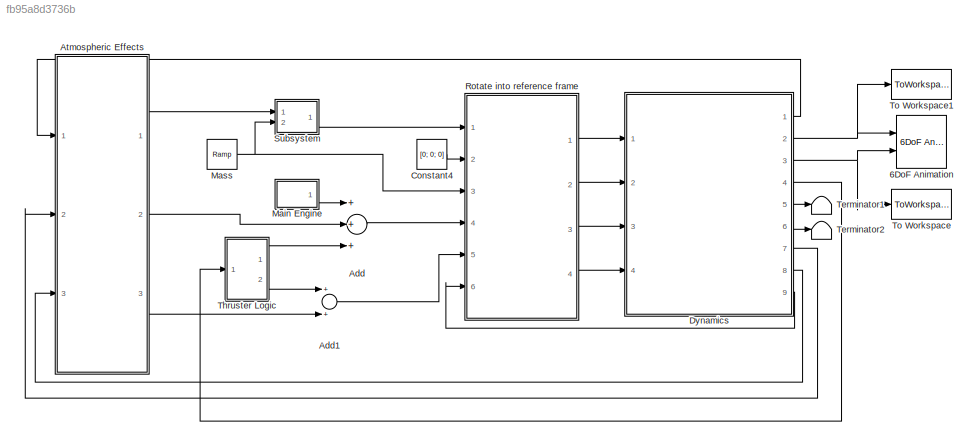
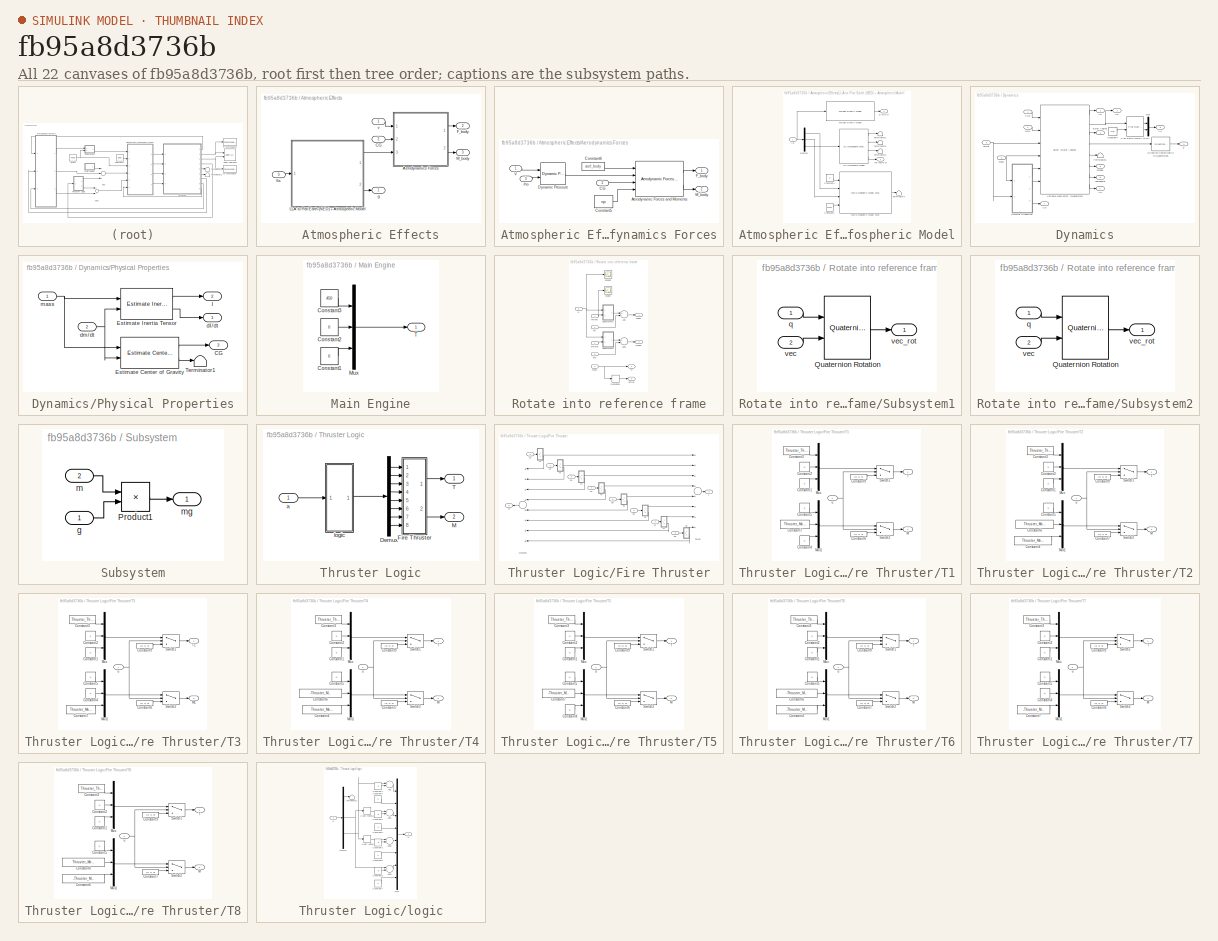
[diagram: thumbnail index - all 22 canvases of the model, root first then tree order]
MODEL slx_fb95a8d3736b
KIND model
BLOCK [Reference] 6DoF Animation  REF=aerolibanim/6DoF Animation
  Ports = [2]
  SourceBlock = aerolibanim/6DoF Animation
  SourceType = 6DoF_Animation
  u1 = [0 400 -200 200 -500 -300]
  u2 = 0.1
  u3 = 40
  u4 = [0 0 40]
  u5 = Fixed position
  u6 = [200 50 -315]
  u7 = 10
  u8 = on
BLOCK [Sum] Add
  InputSameDT = off
  Inputs = +++
  OutDataTypeStr = Inherit: Inherit via internal rule
  Ports = [3, 1]
  SaturateOnIntegerOverflow = off
BLOCK [Sum] Add1
  InputSameDT = off
  OutDataTypeStr = Inherit: Inherit via internal rule
  Ports = [2, 1]
  SaturateOnIntegerOverflow = off
BLOCK [SubSystem] Atmospheric Effects
  FunctionWithSeparateData = off
  MaskHideContents = off
  MinAlgLoopOccurrences = off
  Opaque = off
  Ports = [3, 3]
  PropExecContextOutsideSubsystem = off
  RTWSystemCode = Auto
  RequestExecContextInheritance = off
BLOCK [SubSystem] Atmospheric Effects/Aerodynamics Forces
  FunctionWithSeparateData = off
  MaskHideContents = off
  MinAlgLoopOccurrences = off
  Opaque = off
  Ports = [3, 2]
  PropExecContextOutsideSubsystem = off
  RTWSystemCode = Auto
  RequestExecContextInheritance = off
BLOCK [Reference] Atmospheric Effects/Aerodynamics Forces/Aerodynamic Forces and Moments   REF=aerolibadyn/Aerodynamic
Forces and Moments 
  Ports = [4, 2]
  S = 1
  SourceBlock = aerolibadyn/Aerodynamic\nForces and Moments
  SourceType = Aerodynamic Forces and Moments
  b = 1
  cbar = 1
  inputAxes = Body
  outputForceAxes = Body
  outputMomentAxes = Body
BLOCK [Inport] Atmospheric Effects/Aerodynamics Forces/CG
  IconDisplay = Port number
  Port = 2
BLOCK [Constant] Atmospheric Effects/Aerodynamics Forces/Constant5
  Value = cp
BLOCK [Constant] Atmospheric Effects/Aerodynamics Forces/Constant6
  Value = coef_body
BLOCK [Reference] Atmospheric Effects/Aerodynamics Forces/Dynamic Pressure  REF=aerolibasang/Dynamic Pressure
  Ports = [2, 1]
  SourceBlock = aerolibasang/Dynamic Pressure
  SourceType = Dynamic Pressure
BLOCK [Outport] Atmospheric Effects/Aerodynamics Forces/F_body
  IconDisplay = Port number
BLOCK [Outport] Atmospheric Effects/Aerodynamics Forces/M_body
  IconDisplay = Port number
  Port = 2
BLOCK [Inport] Atmospheric Effects/Aerodynamics Forces/V
  IconDisplay = Port number
BLOCK [Inport] Atmospheric Effects/Aerodynamics Forces/rho
  IconDisplay = Port number
  Port = 3
BLOCK [Inport] Atmospheric Effects/CG
  IconDisplay = Port number
  Port = 2
BLOCK [Outport] Atmospheric Effects/F_body
  IconDisplay = Port number
  Port = 2
BLOCK [SubSystem] Atmospheric Effects/LLA to Flat Earth (NED) + Atmospheric Model
  FunctionWithSeparateData = off
  MaskHideContents = off
  MinAlgLoopOccurrences = off
  Opaque = off
  Ports = [1, 2]
  PropExecContextOutsideSubsystem = off
  RTWSystemCode = Auto
  RequestExecContextInheritance = off
BLOCK [Constant] Atmospheric Effects/LLA to Flat Earth (NED) + Atmospheric Model/Constant1
  Value = dyear
BLOCK [Constant] Atmospheric Effects/LLA to Flat Earth (NED) + Atmospheric Model/Constant4
  Value = 0
BLOCK [Demux] Atmospheric Effects/LLA to Flat Earth (NED) + Atmospheric Model/Demux1
  DisplayOption = bar
  Outputs = 3
  Ports = [1, 3]
BLOCK [Reference] Atmospheric Effects/LLA to Flat Earth (NED) + Atmospheric Model/ISA Atmosphere Model  REF=aerolibatmos2/ISA Atmosphere Model
  L = 0.0065
  P0 = 101325
  Ports = [1, 4]
  R = 287.0531
  SourceBlock = aerolibatmos2/ISA Atmosphere Model
  SourceType = International Standard Atmosphere Model
  T0 = 288.15
  custom = off
  g = 9.80665
  gamma = 1.4
  h_strat = 20000
  h_trop = 11000
  rho0 = 1.225
BLOCK [Terminator] Atmospheric Effects/LLA to Flat Earth (NED) + Atmospheric Model/Terminator1
BLOCK [Terminator] Atmospheric Effects/LLA to Flat Earth (NED) + Atmospheric Model/Terminator2
BLOCK [Terminator] Atmospheric Effects/LLA to Flat Earth (NED) + Atmospheric Model/Terminator3
BLOCK [Terminator] Atmospheric Effects/LLA to Flat Earth (NED) + Atmospheric Model/Terminator4
BLOCK [Reference] Atmospheric Effects/LLA to Flat Earth (NED) + Atmospheric Model/WGS84 Gravity Model   REF=aerolibgravity2/WGS84 Gravity Model 
  Ports = [1, 1]
  SourceBlock = aerolibgravity2/WGS84 Gravity Model
  SourceType = WGS84 Gravity Model 3D
  action = Warning
  day = 10
  jd_loc = off
  model = WGS84 Taylor Series
  month = October
  no_atmos = on
  no_centrifugal = on
  precessing = on
  units = Metric (MKS)
  year = 2004
BLOCK [Reference] Atmospheric Effects/LLA to Flat Earth (NED) + Atmospheric Model/World Magnetic Model 2010  REF=aerolibgravity2/World Magnetic Model 2010
  Ports = [4, 1]
  SourceBlock = aerolibgravity2/World Magnetic Model 2010
  SourceType = World Magnetic Model 2010
  action = Error
  day = 12
  dec_out = off
  h_out = off
  inc_out = off
  month = June
  ti_out = off
  time_in = on
  units = Metric (MKS)
  year = 2014
BLOCK [Outport] Atmospheric Effects/LLA to Flat Earth (NED) + Atmospheric Model/g (m//s^2) 
  IconDisplay = Port number
  Port = 2
BLOCK [Inport] Atmospheric Effects/LLA to Flat Earth (NED) + Atmospheric Model/lla
  IconDisplay = Port number
BLOCK [Outport] Atmospheric Effects/LLA to Flat Earth (NED) + Atmospheric Model/rho (kg//m^3)
  IconDisplay = Port number
BLOCK [Outport] Atmospheric Effects/M_body
  IconDisplay = Port number
  Port = 3
BLOCK [Outport] Atmospheric Effects/g
  IconDisplay = Port number
BLOCK [Inport] Atmospheric Effects/lla
  IconDisplay = Port number
  Port = 3
BLOCK [Inport] Atmospheric Effects/v
  IconDisplay = Port number
BLOCK [Constant] Constant4
  Value = [0; 0; 0]
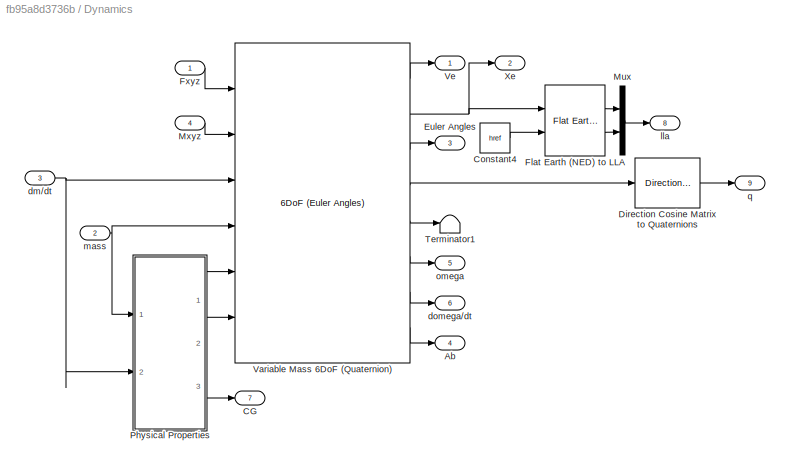
BLOCK [SubSystem] Dynamics
  FunctionWithSeparateData = off
  MaskHideContents = off
  MinAlgLoopOccurrences = off
  Opaque = off
  Ports = [4, 9]
  PropExecContextOutsideSubsystem = off
  RTWSystemCode = Auto
  RequestExecContextInheritance = off
BLOCK [Outport] Dynamics/Ab
  IconDisplay = Port number
  Port = 4
BLOCK [Outport] Dynamics/CG
  IconDisplay = Port number
  Port = 7
BLOCK [Constant] Dynamics/Constant4
  Value = href
BLOCK [Reference] Dynamics/Direction Cosine Matrix  to Quaternions  REF=aerolibtransform2/Direction Cosine Matrix 
to Quaternions
  Ports = [1, 1]
  SourceBlock = aerolibtransform2/Direction Cosine Matrix \nto Quaternions
  SourceType = DCM2Quaternion
BLOCK [Outport] Dynamics/Euler Angles
  IconDisplay = Port number
  Port = 3
BLOCK [Reference] Dynamics/Flat Earth (NED) to LLA  REF=aerolibtransform2/Flat Earth to LLA
  F = 1/298.257223563
  LL0 = [lat lon]
  Ports = [2, 2]
  R = 6378137
  SourceBlock = aerolibtransform2/Flat Earth to LLA
  SourceType = Flat Earth to LLA
  psi = 0
  ptype = Earth (WGS84)
  units = Metric (MKS)
BLOCK [Inport] Dynamics/Fxyz
  IconDisplay = Port number
BLOCK [Mux] Dynamics/Mux
  DisplayOption = bar
  Inputs = 2
  Ports = [2, 1]
BLOCK [Inport] Dynamics/Mxyz
  IconDisplay = Port number
  Port = 4
BLOCK [SubSystem] Dynamics/Physical Properties
  FunctionWithSeparateData = off
  MaskHideContents = off
  MinAlgLoopOccurrences = off
  Opaque = off
  Ports = [2, 3]
  PropExecContextOutsideSubsystem = off
  RTWSystemCode = Auto
  RequestExecContextInheritance = off
BLOCK [Outport] Dynamics/Physical Properties/CG
  IconDisplay = Port number
  Port = 3
BLOCK [Reference] Dynamics/Physical Properties/Estimate Center of Gravity  REF=aerolibbdyn/Estimate
Center of Gravity
  Ports = [2, 2]
  SourceBlock = aerolibbdyn/Estimate\nCenter of Gravity
  SourceType = Estimate Center of Gravity
  ecg = empty_cg
  emass = empty_mass
  fcg = full_cg
  fmass = full_mass
BLOCK [Reference] Dynamics/Physical Properties/Estimate Inertia Tensor  REF=aerolibbdyn/Estimate
Inertia Tensor
  Ports = [2, 2]
  SourceBlock = aerolibbdyn/Estimate\nInertia Tensor
  SourceType = Estimate Inertia Tensor
  eI = empty_intertia_matrix
  emass = empty_mass
  fI = full_intertia_matrix
  fmass = full_mass
BLOCK [Outport] Dynamics/Physical Properties/I
  IconDisplay = Port number
  Port = 2
BLOCK [Terminator] Dynamics/Physical Properties/Terminator1
BLOCK [Outport] Dynamics/Physical Properties/dI//dt
  IconDisplay = Port number
BLOCK [Inport] Dynamics/Physical Properties/dm//dt
  IconDisplay = Port number
  Port = 2
BLOCK [Inport] Dynamics/Physical Properties/mass
  IconDisplay = Port number
BLOCK [Terminator] Dynamics/Terminator1
BLOCK [Reference] Dynamics/Variable Mass 6DoF (Quaternion)  REF=aerolib6dof2/6DoF (Euler Angles)
  Ports = [6, 8]
  SourceBlock = aerolib6dof2/6DoF (Euler Angles)
  SourceType = 6DoF EoM (Body Axis)
  Vm_0 = [0 0 0]
  eul_0 = [phi0 theta0 psi0]
  inertia = eye(3)
  inertia_e = eye(3)
  inertia_f = eye(3)
  k_quat = 1.0
  mass_0 = 1.0
  mass_e = 0
  mass_f = 0
  mtype = Custom Variable
  pm_0 = [0 0 0]
  rep = Quaternion
  units = Metric (MKS)
  xme_0 = [0 0 0]
BLOCK [Outport] Dynamics/Ve
  IconDisplay = Port number
BLOCK [Outport] Dynamics/Xe
  IconDisplay = Port number
  Port = 2
BLOCK [Inport] Dynamics/dm//dt
  IconDisplay = Port number
  Port = 3
BLOCK [Outport] Dynamics/domega//dt
  IconDisplay = Port number
  Port = 6
BLOCK [Outport] Dynamics/lla
  IconDisplay = Port number
  Port = 8
BLOCK [Inport] Dynamics/mass
  IconDisplay = Port number
  Port = 2
BLOCK [Outport] Dynamics/omega
  IconDisplay = Port number
  Port = 5
BLOCK [Outport] Dynamics/q
  IconDisplay = Port number
  Port = 9
BLOCK [SubSystem] Main Engine
  FunctionWithSeparateData = off
  MaskHideContents = off
  MinAlgLoopOccurrences = off
  Opaque = off
  Ports = [0, 1]
  PropExecContextOutsideSubsystem = off
  RTWSystemCode = Auto
  RequestExecContextInheritance = off
BLOCK [Constant] Main Engine/Constant1
  Value = 0
BLOCK [Constant] Main Engine/Constant2
  Value = 0
BLOCK [Constant] Main Engine/Constant3
  Value = 450
BLOCK [Mux] Main Engine/Mux
  DisplayOption = bar
  Inputs = 3
  Ports = [3, 1]
BLOCK [Outport] Main Engine/T
  IconDisplay = Port number
BLOCK [Reference] Mass  REF=simulink/Sources/Ramp
  Ports = [0, 1]
  SourceBlock = simulink/Sources/Ramp
  SourceType = Ramp
  VectorParams1D = on
  X0 = 50
  slope = -.2
  start = 0
BLOCK [SubSystem] Rotate into reference frame
  FunctionWithSeparateData = off
  MaskHideContents = off
  MinAlgLoopOccurrences = off
  Opaque = off
  Ports = [6, 4]
  PropExecContextOutsideSubsystem = off
  RTWSystemCode = Auto
  RequestExecContextInheritance = off
BLOCK [Sum] Rotate into reference frame/Add
  InputSameDT = off
  OutDataTypeStr = Inherit: Inherit via internal rule
  Ports = [2, 1]
  SaturateOnIntegerOverflow = off
BLOCK [Sum] Rotate into reference frame/Add1
  InputSameDT = off
  OutDataTypeStr = Inherit: Inherit via internal rule
  Ports = [2, 1]
  SaturateOnIntegerOverflow = off
BLOCK [Derivative] Rotate into reference frame/Derivative
BLOCK [Inport] Rotate into reference frame/Fb
  IconDisplay = Port number
  Port = 4
BLOCK [Outport] Rotate into reference frame/Fbody
  IconDisplay = Port number
BLOCK [Inport] Rotate into reference frame/Fworld
  IconDisplay = Port number
BLOCK [Inport] Rotate into reference frame/Mb
  IconDisplay = Port number
  Port = 5
BLOCK [Outport] Rotate into reference frame/Mbody
  IconDisplay = Port number
  Port = 4
BLOCK [Inport] Rotate into reference frame/Mworld
  IconDisplay = Port number
  Port = 2
BLOCK [Scope] Rotate into reference frame/Scope
  DataFormat = StructureWithTime
  Floating = off
  NumInputPorts = 1
  Ports = [1]
  SampleTime = 0
  ShowLegends = off
BLOCK [Scope] Rotate into reference frame/Scope2
  DataFormat = StructureWithTime
  Floating = off
  NumInputPorts = 1
  Ports = [1]
  SampleTime = 0
  SaveName = ScopeData2
  ShowLegends = off
BLOCK [SubSystem] Rotate into reference frame/Subsystem1
  FunctionWithSeparateData = off
  MaskHideContents = off
  MinAlgLoopOccurrences = off
  Opaque = off
  Ports = [2, 1]
  PropExecContextOutsideSubsystem = off
  RTWSystemCode = Auto
  RequestExecContextInheritance = off
BLOCK [Reference] Rotate into reference frame/Subsystem1/Quaternion Rotation  REF=aerolibutil/Quaternion
Rotation
  Ports = [2, 1]
  SourceBlock = aerolibutil/Quaternion\nRotation
  SourceType = Quaternion Rotation
BLOCK [Inport] Rotate into reference frame/Subsystem1/q
  IconDisplay = Port number
BLOCK [Inport] Rotate into reference frame/Subsystem1/vec
  IconDisplay = Port number
  Port = 2
BLOCK [Outport] Rotate into reference frame/Subsystem1/vec_rot
  IconDisplay = Port number
BLOCK [SubSystem] Rotate into reference frame/Subsystem2
  FunctionWithSeparateData = off
  MaskHideContents = off
  MinAlgLoopOccurrences = off
  Opaque = off
  Ports = [2, 1]
  PropExecContextOutsideSubsystem = off
  RTWSystemCode = Auto
  RequestExecContextInheritance = off
BLOCK [Reference] Rotate into reference frame/Subsystem2/Quaternion Rotation  REF=aerolibutil/Quaternion
Rotation
  Ports = [2, 1]
  SourceBlock = aerolibutil/Quaternion\nRotation
  SourceType = Quaternion Rotation
BLOCK [Inport] Rotate into reference frame/Subsystem2/q
  IconDisplay = Port number
BLOCK [Inport] Rotate into reference frame/Subsystem2/vec
  IconDisplay = Port number
  Port = 2
BLOCK [Outport] Rotate into reference frame/Subsystem2/vec_rot
  IconDisplay = Port number
BLOCK [Outport] Rotate into reference frame/dm//dt
  IconDisplay = Port number
  Port = 3
BLOCK [Outport] Rotate into reference frame/m
  IconDisplay = Port number
  Port = 2
BLOCK [Inport] Rotate into reference frame/mass
  IconDisplay = Port number
  Port = 3
BLOCK [Inport] Rotate into reference frame/q
  IconDisplay = Port number
  Port = 6
BLOCK [SubSystem] Subsystem
  FunctionWithSeparateData = off
  MaskHideContents = off
  MinAlgLoopOccurrences = off
  Opaque = off
  Ports = [2, 1]
  PropExecContextOutsideSubsystem = off
  RTWSystemCode = Auto
  RequestExecContextInheritance = off
BLOCK [Product] Subsystem/Product1
  InputSameDT = off
  OutDataTypeStr = Inherit: Inherit via internal rule
  Ports = [2, 1]
  SaturateOnIntegerOverflow = off
BLOCK [Inport] Subsystem/g
  IconDisplay = Port number
BLOCK [Inport] Subsystem/m
  IconDisplay = Port number
  Port = 2
BLOCK [Outport] Subsystem/mg
  IconDisplay = Port number
BLOCK [Terminator] Terminator1
BLOCK [Terminator] Terminator2
BLOCK [SubSystem] Thruster Logic
  FunctionWithSeparateData = off
  MaskHideContents = off
  MinAlgLoopOccurrences = off
  Opaque = off
  Ports = [1, 2]
  PropExecContextOutsideSubsystem = off
  RTWSystemCode = Auto
  RequestExecContextInheritance = off
BLOCK [Demux] Thruster Logic/Demux
  DisplayOption = bar
  Outputs = 8
  Ports = [1, 8]
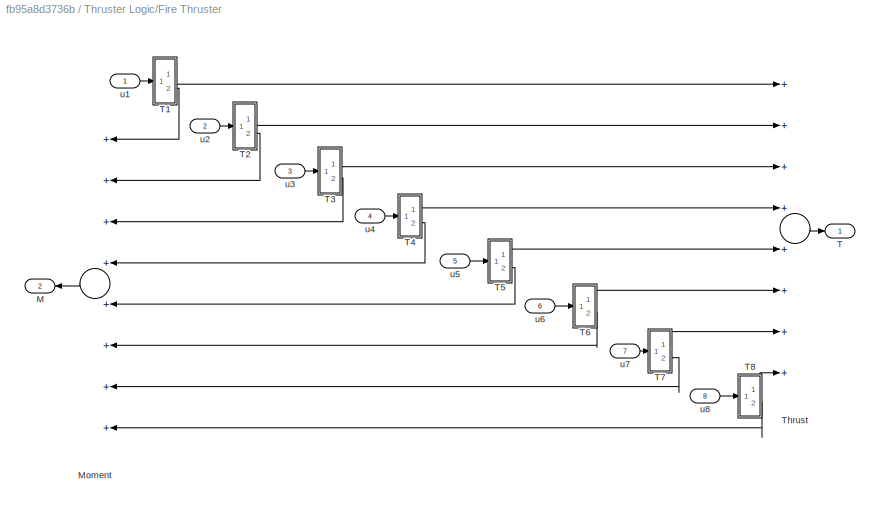
BLOCK [SubSystem] Thruster Logic/Fire Thruster
  FunctionWithSeparateData = off
  MaskHideContents = off
  MinAlgLoopOccurrences = off
  Opaque = off
  Ports = [8, 2]
  PropExecContextOutsideSubsystem = off
  RTWSystemCode = Auto
  RequestExecContextInheritance = off
BLOCK [Outport] Thruster Logic/Fire Thruster/M
  IconDisplay = Port number
  Port = 2
BLOCK [Sum] Thruster Logic/Fire Thruster/Moment
  InputSameDT = off
  Inputs = ++++++++
  OutDataTypeStr = Inherit: Inherit via internal rule
  Ports = [8, 1]
  SaturateOnIntegerOverflow = off
BLOCK [Outport] Thruster Logic/Fire Thruster/T
  IconDisplay = Port number
BLOCK [SubSystem] Thruster Logic/Fire Thruster/T1
  FunctionWithSeparateData = off
  MaskHideContents = off
  MinAlgLoopOccurrences = off
  Opaque = off
  Ports = [1, 2]
  PropExecContextOutsideSubsystem = off
  RTWSystemCode = Auto
  RequestExecContextInheritance = off
BLOCK [Constant] Thruster Logic/Fire Thruster/T1/Constant1
  Value = 0
BLOCK [Constant] Thruster Logic/Fire Thruster/T1/Constant2
  Value = 0
BLOCK [Constant] Thruster Logic/Fire Thruster/T1/Constant3
  Value = Thruster_Thrust
BLOCK [Constant] Thruster Logic/Fire Thruster/T1/Constant4
  Value = 0
BLOCK [Constant] Thruster Logic/Fire Thruster/T1/Constant5
  Value = 0
BLOCK [Constant] Thruster Logic/Fire Thruster/T1/Constant6
  Value = [0; 0; 0]
BLOCK [Constant] Thruster Logic/Fire Thruster/T1/Constant7
  Value = Thruster_Moment
BLOCK [Constant] Thruster Logic/Fire Thruster/T1/Constant9
  Value = [0; 0; 0]
BLOCK [Outport] Thruster Logic/Fire Thruster/T1/M
  IconDisplay = Port number
  Port = 2
BLOCK [Mux] Thruster Logic/Fire Thruster/T1/Mux
  DisplayOption = bar
  Inputs = 3
  Ports = [3, 1]
BLOCK [Mux] Thruster Logic/Fire Thruster/T1/Mux1
  DisplayOption = bar
  Inputs = 3
  Ports = [3, 1]
BLOCK [Switch] Thruster Logic/Fire Thruster/T1/Switch1
  InputSameDT = off
  SaturateOnIntegerOverflow = off
  Threshold = threshold
BLOCK [Switch] Thruster Logic/Fire Thruster/T1/Switch2
  InputSameDT = off
  SaturateOnIntegerOverflow = off
  Threshold = threshold
BLOCK [Outport] Thruster Logic/Fire Thruster/T1/T
  IconDisplay = Port number
BLOCK [Inport] Thruster Logic/Fire Thruster/T1/u
  IconDisplay = Port number
BLOCK [SubSystem] Thruster Logic/Fire Thruster/T2
  FunctionWithSeparateData = off
  MaskHideContents = off
  MinAlgLoopOccurrences = off
  Opaque = off
  Ports = [1, 2]
  PropExecContextOutsideSubsystem = off
  RTWSystemCode = Auto
  RequestExecContextInheritance = off
BLOCK [Constant] Thruster Logic/Fire Thruster/T2/Constant1
  Value = 0
BLOCK [Constant] Thruster Logic/Fire Thruster/T2/Constant2
  Value = 0
BLOCK [Constant] Thruster Logic/Fire Thruster/T2/Constant3
  Value = Thruster_Thrust
BLOCK [Constant] Thruster Logic/Fire Thruster/T2/Constant4
  Value = Thruster_Moment/sqrt(2)
BLOCK [Constant] Thruster Logic/Fire Thruster/T2/Constant5
  Value = 0
BLOCK [Constant] Thruster Logic/Fire Thruster/T2/Constant6
  Value = Thruster_Moment/sqrt(2)
BLOCK [Constant] Thruster Logic/Fire Thruster/T2/Constant7
  Value = [0; 0; 0]
BLOCK [Constant] Thruster Logic/Fire Thruster/T2/Constant9
  Value = [0; 0; 0]
BLOCK [Outport] Thruster Logic/Fire Thruster/T2/M
  IconDisplay = Port number
  Port = 2
BLOCK [Mux] Thruster Logic/Fire Thruster/T2/Mux
  DisplayOption = bar
  Inputs = 3
  Ports = [3, 1]
BLOCK [Mux] Thruster Logic/Fire Thruster/T2/Mux1
  DisplayOption = bar
  Inputs = 3
  Ports = [3, 1]
BLOCK [Switch] Thruster Logic/Fire Thruster/T2/Switch1
  InputSameDT = off
  SaturateOnIntegerOverflow = off
  Threshold = threshold
BLOCK [Switch] Thruster Logic/Fire Thruster/T2/Switch2
  InputSameDT = off
  SaturateOnIntegerOverflow = off
  Threshold = threshold
BLOCK [Outport] Thruster Logic/Fire Thruster/T2/T
  IconDisplay = Port number
BLOCK [Inport] Thruster Logic/Fire Thruster/T2/u
  IconDisplay = Port number
BLOCK [SubSystem] Thruster Logic/Fire Thruster/T3
  FunctionWithSeparateData = off
  MaskHideContents = off
  MinAlgLoopOccurrences = off
  Opaque = off
  Ports = [1, 2]
  PropExecContextOutsideSubsystem = off
  RTWSystemCode = Auto
  RequestExecContextInheritance = off
BLOCK [Constant] Thruster Logic/Fire Thruster/T3/Constant1
  Value = 0
BLOCK [Constant] Thruster Logic/Fire Thruster/T3/Constant2
  Value = 0
BLOCK [Constant] Thruster Logic/Fire Thruster/T3/Constant3
  Value = Thruster_Thrust
BLOCK [Constant] Thruster Logic/Fire Thruster/T3/Constant4
  Value = 0
BLOCK [Constant] Thruster Logic/Fire Thruster/T3/Constant5
  Value = 0
BLOCK [Constant] Thruster Logic/Fire Thruster/T3/Constant6
  Value = [0; 0; 0]
BLOCK [Constant] Thruster Logic/Fire Thruster/T3/Constant7
  Value = Thruster_Moment
BLOCK [Constant] Thruster Logic/Fire Thruster/T3/Constant9
  Value = [0; 0; 0]
BLOCK [Outport] Thruster Logic/Fire Thruster/T3/M1
  IconDisplay = Port number
  Port = 2
BLOCK [Mux] Thruster Logic/Fire Thruster/T3/Mux
  DisplayOption = bar
  Inputs = 3
  Ports = [3, 1]
BLOCK [Mux] Thruster Logic/Fire Thruster/T3/Mux1
  DisplayOption = bar
  Inputs = 3
  Ports = [3, 1]
BLOCK [Switch] Thruster Logic/Fire Thruster/T3/Switch1
  InputSameDT = off
  SaturateOnIntegerOverflow = off
  Threshold = threshold
BLOCK [Switch] Thruster Logic/Fire Thruster/T3/Switch2
  InputSameDT = off
  SaturateOnIntegerOverflow = off
  Threshold = threshold
BLOCK [Outport] Thruster Logic/Fire Thruster/T3/T1
  IconDisplay = Port number
BLOCK [Inport] Thruster Logic/Fire Thruster/T3/u
  IconDisplay = Port number
BLOCK [SubSystem] Thruster Logic/Fire Thruster/T4
  FunctionWithSeparateData = off
  MaskHideContents = off
  MinAlgLoopOccurrences = off
  Opaque = off
  Ports = [1, 2]
  PropExecContextOutsideSubsystem = off
  RTWSystemCode = Auto
  RequestExecContextInheritance = off
BLOCK [Constant] Thruster Logic/Fire Thruster/T4/Constant1
  Value = 0
BLOCK [Constant] Thruster Logic/Fire Thruster/T4/Constant2
  Value = 0
BLOCK [Constant] Thruster Logic/Fire Thruster/T4/Constant3
  Value = Thruster_Thrust
BLOCK [Constant] Thruster Logic/Fire Thruster/T4/Constant4
  Value = Thruster_Moment/sqrt(2)
BLOCK [Constant] Thruster Logic/Fire Thruster/T4/Constant5
  Value = 0
BLOCK [Constant] Thruster Logic/Fire Thruster/T4/Constant6
  Value = -Thruster_Moment/sqrt(2)
BLOCK [Constant] Thruster Logic/Fire Thruster/T4/Constant7
  Value = [0; 0; 0]
BLOCK [Constant] Thruster Logic/Fire Thruster/T4/Constant9
  Value = [0; 0; 0]
BLOCK [Outport] Thruster Logic/Fire Thruster/T4/M
  IconDisplay = Port number
  Port = 2
BLOCK [Mux] Thruster Logic/Fire Thruster/T4/Mux
  DisplayOption = bar
  Inputs = 3
  Ports = [3, 1]
BLOCK [Mux] Thruster Logic/Fire Thruster/T4/Mux1
  DisplayOption = bar
  Inputs = 3
  Ports = [3, 1]
BLOCK [Switch] Thruster Logic/Fire Thruster/T4/Switch1
  InputSameDT = off
  SaturateOnIntegerOverflow = off
  Threshold = threshold
BLOCK [Switch] Thruster Logic/Fire Thruster/T4/Switch2
  InputSameDT = off
  SaturateOnIntegerOverflow = off
  Threshold = threshold
BLOCK [Outport] Thruster Logic/Fire Thruster/T4/T
  IconDisplay = Port number
BLOCK [Inport] Thruster Logic/Fire Thruster/T4/u
  IconDisplay = Port number
BLOCK [SubSystem] Thruster Logic/Fire Thruster/T5
  FunctionWithSeparateData = off
  MaskHideContents = off
  MinAlgLoopOccurrences = off
  Opaque = off
  Ports = [1, 2]
  PropExecContextOutsideSubsystem = off
  RTWSystemCode = Auto
  RequestExecContextInheritance = off
BLOCK [Constant] Thruster Logic/Fire Thruster/T5/Constant1
  Value = 0
BLOCK [Constant] Thruster Logic/Fire Thruster/T5/Constant2
  Value = 0
BLOCK [Constant] Thruster Logic/Fire Thruster/T5/Constant3
  Value = Thruster_Thrust
BLOCK [Constant] Thruster Logic/Fire Thruster/T5/Constant4
  Value = 0
BLOCK [Constant] Thruster Logic/Fire Thruster/T5/Constant5
  Value = 0
BLOCK [Constant] Thruster Logic/Fire Thruster/T5/Constant6
  Value = [0; 0; 0]
BLOCK [Constant] Thruster Logic/Fire Thruster/T5/Constant7
  Value = -Thruster_Moment
BLOCK [Constant] Thruster Logic/Fire Thruster/T5/Constant9
  Value = [0; 0; 0]
BLOCK [Outport] Thruster Logic/Fire Thruster/T5/M
  IconDisplay = Port number
  Port = 2
BLOCK [Mux] Thruster Logic/Fire Thruster/T5/Mux
  DisplayOption = bar
  Inputs = 3
  Ports = [3, 1]
BLOCK [Mux] Thruster Logic/Fire Thruster/T5/Mux1
  DisplayOption = bar
  Inputs = 3
  Ports = [3, 1]
BLOCK [Switch] Thruster Logic/Fire Thruster/T5/Switch1
  InputSameDT = off
  SaturateOnIntegerOverflow = off
  Threshold = threshold
BLOCK [Switch] Thruster Logic/Fire Thruster/T5/Switch2
  InputSameDT = off
  SaturateOnIntegerOverflow = off
  Threshold = threshold
BLOCK [Outport] Thruster Logic/Fire Thruster/T5/T
  IconDisplay = Port number
BLOCK [Inport] Thruster Logic/Fire Thruster/T5/u
  IconDisplay = Port number
BLOCK [SubSystem] Thruster Logic/Fire Thruster/T6
  FunctionWithSeparateData = off
  MaskHideContents = off
  MinAlgLoopOccurrences = off
  Opaque = off
  Ports = [1, 2]
  PropExecContextOutsideSubsystem = off
  RTWSystemCode = Auto
  RequestExecContextInheritance = off
BLOCK [Constant] Thruster Logic/Fire Thruster/T6/Constant1
  Value = 0
BLOCK [Constant] Thruster Logic/Fire Thruster/T6/Constant2
  Value = 0
BLOCK [Constant] Thruster Logic/Fire Thruster/T6/Constant3
  Value = Thruster_Thrust
BLOCK [Constant] Thruster Logic/Fire Thruster/T6/Constant4
  Value = -Thruster_Moment/sqrt(2)
BLOCK [Constant] Thruster Logic/Fire Thruster/T6/Constant5
  Value = 0
BLOCK [Constant] Thruster Logic/Fire Thruster/T6/Constant6
  Value = -Thruster_Moment/sqrt(2)
BLOCK [Constant] Thruster Logic/Fire Thruster/T6/Constant7
  Value = [0; 0; 0]
BLOCK [Constant] Thruster Logic/Fire Thruster/T6/Constant9
  Value = [0; 0; 0]
BLOCK [Outport] Thruster Logic/Fire Thruster/T6/M
  IconDisplay = Port number
  Port = 2
BLOCK [Mux] Thruster Logic/Fire Thruster/T6/Mux
  DisplayOption = bar
  Inputs = 3
  Ports = [3, 1]
BLOCK [Mux] Thruster Logic/Fire Thruster/T6/Mux1
  DisplayOption = bar
  Inputs = 3
  Ports = [3, 1]
BLOCK [Switch] Thruster Logic/Fire Thruster/T6/Switch1
  InputSameDT = off
  SaturateOnIntegerOverflow = off
  Threshold = threshold
BLOCK [Switch] Thruster Logic/Fire Thruster/T6/Switch2
  InputSameDT = off
  SaturateOnIntegerOverflow = off
  Threshold = threshold
BLOCK [Outport] Thruster Logic/Fire Thruster/T6/T
  IconDisplay = Port number
BLOCK [Inport] Thruster Logic/Fire Thruster/T6/u
  IconDisplay = Port number
BLOCK [SubSystem] Thruster Logic/Fire Thruster/T7
  FunctionWithSeparateData = off
  MaskHideContents = off
  MinAlgLoopOccurrences = off
  Opaque = off
  Ports = [1, 2]
  PropExecContextOutsideSubsystem = off
  RTWSystemCode = Auto
  RequestExecContextInheritance = off
BLOCK [Constant] Thruster Logic/Fire Thruster/T7/Constant1
  Value = 0
BLOCK [Constant] Thruster Logic/Fire Thruster/T7/Constant2
  Value = 0
BLOCK [Constant] Thruster Logic/Fire Thruster/T7/Constant3
  Value = Thruster_Thrust
BLOCK [Constant] Thruster Logic/Fire Thruster/T7/Constant4
  Value = 0
BLOCK [Constant] Thruster Logic/Fire Thruster/T7/Constant5
  Value = 0
BLOCK [Constant] Thruster Logic/Fire Thruster/T7/Constant6
  Value = [0; 0; 0]
BLOCK [Constant] Thruster Logic/Fire Thruster/T7/Constant7
  Value = -Thruster_Moment
BLOCK [Constant] Thruster Logic/Fire Thruster/T7/Constant9
  Value = [0; 0; 0]
BLOCK [Outport] Thruster Logic/Fire Thruster/T7/M
  IconDisplay = Port number
  Port = 2
BLOCK [Mux] Thruster Logic/Fire Thruster/T7/Mux
  DisplayOption = bar
  Inputs = 3
  Ports = [3, 1]
BLOCK [Mux] Thruster Logic/Fire Thruster/T7/Mux1
  DisplayOption = bar
  Inputs = 3
  Ports = [3, 1]
BLOCK [Switch] Thruster Logic/Fire Thruster/T7/Switch1
  InputSameDT = off
  SaturateOnIntegerOverflow = off
  Threshold = threshold
BLOCK [Switch] Thruster Logic/Fire Thruster/T7/Switch2
  InputSameDT = off
  SaturateOnIntegerOverflow = off
  Threshold = threshold
BLOCK [Outport] Thruster Logic/Fire Thruster/T7/T
  IconDisplay = Port number
BLOCK [Inport] Thruster Logic/Fire Thruster/T7/u
  IconDisplay = Port number
BLOCK [SubSystem] Thruster Logic/Fire Thruster/T8
  FunctionWithSeparateData = off
  MaskHideContents = off
  MinAlgLoopOccurrences = off
  Opaque = off
  Ports = [1, 2]
  PropExecContextOutsideSubsystem = off
  RTWSystemCode = Auto
  RequestExecContextInheritance = off
BLOCK [Constant] Thruster Logic/Fire Thruster/T8/Constant1
  Value = 0
BLOCK [Constant] Thruster Logic/Fire Thruster/T8/Constant2
  Value = 0
BLOCK [Constant] Thruster Logic/Fire Thruster/T8/Constant3
  Value = Thruster_Thrust
BLOCK [Constant] Thruster Logic/Fire Thruster/T8/Constant4
  Value = Thruster_Moment/sqrt(2)
BLOCK [Constant] Thruster Logic/Fire Thruster/T8/Constant5
  Value = 0
BLOCK [Constant] Thruster Logic/Fire Thruster/T8/Constant6
  Value = -Thruster_Moment/sqrt(2)
BLOCK [Constant] Thruster Logic/Fire Thruster/T8/Constant7
  Value = [0; 0; 0]
BLOCK [Constant] Thruster Logic/Fire Thruster/T8/Constant9
  Value = [0; 0; 0]
BLOCK [Outport] Thruster Logic/Fire Thruster/T8/M
  IconDisplay = Port number
  Port = 2
BLOCK [Mux] Thruster Logic/Fire Thruster/T8/Mux
  DisplayOption = bar
  Inputs = 3
  Ports = [3, 1]
BLOCK [Mux] Thruster Logic/Fire Thruster/T8/Mux1
  DisplayOption = bar
  Inputs = 3
  Ports = [3, 1]
BLOCK [Switch] Thruster Logic/Fire Thruster/T8/Switch1
  InputSameDT = off
  SaturateOnIntegerOverflow = off
  Threshold = threshold
BLOCK [Switch] Thruster Logic/Fire Thruster/T8/Switch2
  InputSameDT = off
  SaturateOnIntegerOverflow = off
  Threshold = threshold
BLOCK [Outport] Thruster Logic/Fire Thruster/T8/T
  IconDisplay = Port number
BLOCK [Inport] Thruster Logic/Fire Thruster/T8/u
  IconDisplay = Port number
BLOCK [Sum] Thruster Logic/Fire Thruster/Thrust
  InputSameDT = off
  Inputs = ++++++++
  OutDataTypeStr = Inherit: Inherit via internal rule
  Ports = [8, 1]
  SaturateOnIntegerOverflow = off
BLOCK [Inport] Thruster Logic/Fire Thruster/u1
  IconDisplay = Port number
BLOCK [Inport] Thruster Logic/Fire Thruster/u2
  IconDisplay = Port number
  Port = 2
BLOCK [Inport] Thruster Logic/Fire Thruster/u3
  IconDisplay = Port number
  Port = 3
BLOCK [Inport] Thruster Logic/Fire Thruster/u4
  IconDisplay = Port number
  Port = 4
BLOCK [Inport] Thruster Logic/Fire Thruster/u5
  IconDisplay = Port number
  Port = 5
BLOCK [Inport] Thruster Logic/Fire Thruster/u6
  IconDisplay = Port number
  Port = 6
BLOCK [Inport] Thruster Logic/Fire Thruster/u7
  IconDisplay = Port number
  Port = 7
BLOCK [Inport] Thruster Logic/Fire Thruster/u8
  IconDisplay = Port number
  Port = 8
BLOCK [Outport] Thruster Logic/M
  IconDisplay = Port number
  Port = 2
BLOCK [Outport] Thruster Logic/T
  IconDisplay = Port number
BLOCK [Inport] Thruster Logic/a
  IconDisplay = Port number
BLOCK [SubSystem] Thruster Logic/logic
  FunctionWithSeparateData = off
  MaskHideContents = off
  MinAlgLoopOccurrences = off
  Opaque = off
  Ports = [1, 1]
  PropExecContextOutsideSubsystem = off
  RTWSystemCode = Auto
  RequestExecContextInheritance = off
BLOCK [Sum] Thruster Logic/logic/Add
  InputSameDT = off
  OutDataTypeStr = Inherit: Inherit via internal rule
  Ports = [2, 1]
  SaturateOnIntegerOverflow = off
BLOCK [Sum] Thruster Logic/logic/Add1
  InputSameDT = off
  OutDataTypeStr = Inherit: Inherit via internal rule
  Ports = [2, 1]
  SaturateOnIntegerOverflow = off
BLOCK [Sum] Thruster Logic/logic/Add2
  InputSameDT = off
  OutDataTypeStr = Inherit: Inherit via internal rule
  Ports = [2, 1]
  SaturateOnIntegerOverflow = off
BLOCK [Sum] Thruster Logic/logic/Add3
  InputSameDT = off
  OutDataTypeStr = Inherit: Inherit via internal rule
  Ports = [2, 1]
  SaturateOnIntegerOverflow = off
BLOCK [Constant] Thruster Logic/logic/Constant1
  Value = -.5
BLOCK [Constant] Thruster Logic/logic/Constant2
  Value = -.5
BLOCK [Constant] Thruster Logic/logic/Constant3
  Value = -.5
BLOCK [Constant] Thruster Logic/logic/Constant4
  Value = 0
BLOCK [Constant] Thruster Logic/logic/Constant5
  Value = 0
BLOCK [Constant] Thruster Logic/logic/Constant6
  Value = 0
BLOCK [Constant] Thruster Logic/logic/Constant7
  Value = 0
BLOCK [Constant] Thruster Logic/logic/Constant8
  Value = -.5
BLOCK [Demux] Thruster Logic/logic/Demux
  DisplayOption = bar
  Outputs = 3
  Ports = [1, 3]
BLOCK [Mux] Thruster Logic/logic/Mux
  DisplayOption = bar
  Inputs = 8
  Ports = [8, 1]
BLOCK [Terminator] Thruster Logic/logic/Terminator1
BLOCK [UnaryMinus] Thruster Logic/logic/Unary Minus
BLOCK [UnaryMinus] Thruster Logic/logic/Unary Minus1
BLOCK [Inport] Thruster Logic/logic/a 
  IconDisplay = Port number
BLOCK [Outport] Thruster Logic/logic/u
  IconDisplay = Port number
BLOCK [ToWorkspace] To Workspace
  MaxDataPoints = inf
  Ports = [1]
  SampleTime = -1
  SaveFormat = Timeseries
  VariableName = rpy
BLOCK [ToWorkspace] To Workspace1
  MaxDataPoints = inf
  Ports = [1]
  SampleTime = -1
  SaveFormat = Timeseries
  VariableName = xyz
LINE Add1:1 -> Rotate into reference frame:5
LINE Add:1 -> Rotate into reference frame:4
LINE Atmospheric Effects/Aerodynamics Forces/Aerodynamic Forces and Moments :1 -> Atmospheric Effects/Aerodynamics Forces/F_body:1
LINE Atmospheric Effects/Aerodynamics Forces/Aerodynamic Forces and Moments :2 -> Atmospheric Effects/Aerodynamics Forces/M_body:1
LINE Atmospheric Effects/Aerodynamics Forces/CG:1 -> Atmospheric Effects/Aerodynamics Forces/Aerodynamic Forces and Moments :3
LINE Atmospheric Effects/Aerodynamics Forces/Constant5:1 -> Atmospheric Effects/Aerodynamics Forces/Aerodynamic Forces and Moments :4
LINE Atmospheric Effects/Aerodynamics Forces/Constant6:1 -> Atmospheric Effects/Aerodynamics Forces/Aerodynamic Forces and Moments :1
LINE Atmospheric Effects/Aerodynamics Forces/Dynamic Pressure:1 -> Atmospheric Effects/Aerodynamics Forces/Aerodynamic Forces and Moments :2
LINE Atmospheric Effects/Aerodynamics Forces/V:1 -> Atmospheric Effects/Aerodynamics Forces/Dynamic Pressure:1
LINE Atmospheric Effects/Aerodynamics Forces/rho:1 -> Atmospheric Effects/Aerodynamics Forces/Dynamic Pressure:2
LINE Atmospheric Effects/Aerodynamics Forces:1 -> Atmospheric Effects/F_body:1
LINE Atmospheric Effects/Aerodynamics Forces:2 -> Atmospheric Effects/M_body:1
LINE Atmospheric Effects/CG:1 -> Atmospheric Effects/Aerodynamics Forces:2
LINE Atmospheric Effects/LLA to Flat Earth (NED) + Atmospheric Model/Constant1:1 -> Atmospheric Effects/LLA to Flat Earth (NED) + Atmospheric Model/World Magnetic Model 2010:4
LINE Atmospheric Effects/LLA to Flat Earth (NED) + Atmospheric Model/Constant4:1 -> Atmospheric Effects/LLA to Flat Earth (NED) + Atmospheric Model/World Magnetic Model 2010:1
LINE Atmospheric Effects/LLA to Flat Earth (NED) + Atmospheric Model/Demux1:1 -> Atmospheric Effects/LLA to Flat Earth (NED) + Atmospheric Model/World Magnetic Model 2010:2
LINE Atmospheric Effects/LLA to Flat Earth (NED) + Atmospheric Model/Demux1:2 -> Atmospheric Effects/LLA to Flat Earth (NED) + Atmospheric Model/World Magnetic Model 2010:3
LINE Atmospheric Effects/LLA to Flat Earth (NED) + Atmospheric Model/Demux1:3 -> Atmospheric Effects/LLA to Flat Earth (NED) + Atmospheric Model/ISA Atmosphere Model:1
LINE Atmospheric Effects/LLA to Flat Earth (NED) + Atmospheric Model/ISA Atmosphere Model:1 -> Atmospheric Effects/LLA to Flat Earth (NED) + Atmospheric Model/Terminator1:1
LINE Atmospheric Effects/LLA to Flat Earth (NED) + Atmospheric Model/ISA Atmosphere Model:2 -> Atmospheric Effects/LLA to Flat Earth (NED) + Atmospheric Model/Terminator2:1
LINE Atmospheric Effects/LLA to Flat Earth (NED) + Atmospheric Model/ISA Atmosphere Model:3 -> Atmospheric Effects/LLA to Flat Earth (NED) + Atmospheric Model/Terminator3:1
LINE Atmospheric Effects/LLA to Flat Earth (NED) + Atmospheric Model/ISA Atmosphere Model:4 -> Atmospheric Effects/LLA to Flat Earth (NED) + Atmospheric Model/rho (kg//m^3):1
LINE Atmospheric Effects/LLA to Flat Earth (NED) + Atmospheric Model/WGS84 Gravity Model :1 -> Atmospheric Effects/LLA to Flat Earth (NED) + Atmospheric Model/g (m//s^2) :1
LINE Atmospheric Effects/LLA to Flat Earth (NED) + Atmospheric Model/World Magnetic Model 2010:1 -> Atmospheric Effects/LLA to Flat Earth (NED) + Atmospheric Model/Terminator4:1
NET Atmospheric Effects/LLA to Flat Earth (NED) + Atmospheric Model/lla:1 -> Atmospheric Effects/LLA to Flat Earth (NED) + Atmospheric Model/Demux1:1, Atmospheric Effects/LLA to Flat Earth (NED) + Atmospheric Model/WGS84 Gravity Model :1
LINE Atmospheric Effects/LLA to Flat Earth (NED) + Atmospheric Model:1 -> Atmospheric Effects/Aerodynamics Forces:3
LINE Atmospheric Effects/LLA to Flat Earth (NED) + Atmospheric Model:2 -> Atmospheric Effects/g:1
LINE Atmospheric Effects/lla:1 -> Atmospheric Effects/LLA to Flat Earth (NED) + Atmospheric Model:1
LINE Atmospheric Effects/v:1 -> Atmospheric Effects/Aerodynamics Forces:1
LINE Atmospheric Effects:1 -> Subsystem:1
LINE Atmospheric Effects:2 -> Add:2
LINE Atmospheric Effects:3 -> Add1:2
LINE Constant4:1 -> Rotate into reference frame:2
LINE Dynamics/Constant4:1 -> Dynamics/Flat Earth (NED) to LLA:2
LINE Dynamics/Direction Cosine Matrix  to Quaternions:1 -> Dynamics/q:1
LINE Dynamics/Flat Earth (NED) to LLA:1 -> Dynamics/Mux:1
LINE Dynamics/Flat Earth (NED) to LLA:2 -> Dynamics/Mux:2
LINE Dynamics/Fxyz:1 -> Dynamics/Variable Mass 6DoF (Quaternion):1
LINE Dynamics/Mux:1 -> Dynamics/lla:1
LINE Dynamics/Mxyz:1 -> Dynamics/Variable Mass 6DoF (Quaternion):2
LINE Dynamics/Physical Properties/Estimate Center of Gravity:1 -> Dynamics/Physical Properties/CG:1
LINE Dynamics/Physical Properties/Estimate Center of Gravity:2 -> Dynamics/Physical Properties/Terminator1:1
LINE Dynamics/Physical Properties/Estimate Inertia Tensor:1 -> Dynamics/Physical Properties/I:1
LINE Dynamics/Physical Properties/Estimate Inertia Tensor:2 -> Dynamics/Physical Properties/dI//dt:1
NET Dynamics/Physical Properties/dm//dt:1 -> Dynamics/Physical Properties/Estimate Center of Gravity:2, Dynamics/Physical Properties/Estimate Inertia Tensor:2
NET Dynamics/Physical Properties/mass:1 -> Dynamics/Physical Properties/Estimate Center of Gravity:1, Dynamics/Physical Properties/Estimate Inertia Tensor:1
LINE Dynamics/Physical Properties:1 -> Dynamics/Variable Mass 6DoF (Quaternion):5
LINE Dynamics/Physical Properties:2 -> Dynamics/Variable Mass 6DoF (Quaternion):6
LINE Dynamics/Physical Properties:3 -> Dynamics/CG:1
LINE Dynamics/Variable Mass 6DoF (Quaternion):1 -> Dynamics/Ve:1
NET Dynamics/Variable Mass 6DoF (Quaternion):2 -> Dynamics/Flat Earth (NED) to LLA:1, Dynamics/Xe:1
LINE Dynamics/Variable Mass 6DoF (Quaternion):3 -> Dynamics/Euler Angles:1
LINE Dynamics/Variable Mass 6DoF (Quaternion):4 -> Dynamics/Direction Cosine Matrix  to Quaternions:1
LINE Dynamics/Variable Mass 6DoF (Quaternion):5 -> Dynamics/Terminator1:1
LINE Dynamics/Variable Mass 6DoF (Quaternion):6 -> Dynamics/omega:1
LINE Dynamics/Variable Mass 6DoF (Quaternion):7 -> Dynamics/domega//dt:1
LINE Dynamics/Variable Mass 6DoF (Quaternion):8 -> Dynamics/Ab:1
NET Dynamics/dm//dt:1 -> Dynamics/Physical Properties:2, Dynamics/Variable Mass 6DoF (Quaternion):3
NET Dynamics/mass:1 -> Dynamics/Physical Properties:1, Dynamics/Variable Mass 6DoF (Quaternion):4
LINE Dynamics:1 -> Atmospheric Effects:1
NET Dynamics:2 -> 6DoF Animation:1, To Workspace1:1
NET Dynamics:3 -> 6DoF Animation:2, To Workspace:1
LINE Dynamics:4 -> Thruster Logic:1
LINE Dynamics:5 -> Terminator1:1
LINE Dynamics:6 -> Terminator2:1
LINE Dynamics:7 -> Atmospheric Effects:2
LINE Dynamics:8 -> Atmospheric Effects:3
LINE Dynamics:9 -> Rotate into reference frame:6
LINE Main Engine/Constant1:1 -> Main Engine/Mux:3
LINE Main Engine/Constant2:1 -> Main Engine/Mux:2
LINE Main Engine/Constant3:1 -> Main Engine/Mux:1
LINE Main Engine/Mux:1 -> Main Engine/T:1
LINE Main Engine:1 -> Add:1
NET Mass:1 -> Rotate into reference frame:3, Subsystem:2
LINE Rotate into reference frame/Add1:1 -> Rotate into reference frame/Mbody:1
LINE Rotate into reference frame/Add:1 -> Rotate into reference frame/Fbody:1
LINE Rotate into reference frame/Derivative:1 -> Rotate into reference frame/dm//dt:1
LINE Rotate into reference frame/Fb:1 -> Rotate into reference frame/Add:2
NET Rotate into reference frame/Fworld:1 -> Rotate into reference frame/Scope:1, Rotate into reference frame/Subsystem1:2
LINE Rotate into reference frame/Mb:1 -> Rotate into reference frame/Add1:2
LINE Rotate into reference frame/Mworld:1 -> Rotate into reference frame/Subsystem2:2
LINE Rotate into reference frame/Subsystem1/Quaternion Rotation:1 -> Rotate into reference frame/Subsystem1/vec_rot:1
LINE Rotate into reference frame/Subsystem1/q:1 -> Rotate into reference frame/Subsystem1/Quaternion Rotation:1
LINE Rotate into reference frame/Subsystem1/vec:1 -> Rotate into reference frame/Subsystem1/Quaternion Rotation:2
LINE Rotate into reference frame/Subsystem1:1 -> Rotate into reference frame/Add:1
LINE Rotate into reference frame/Subsystem2/Quaternion Rotation:1 -> Rotate into reference frame/Subsystem2/vec_rot:1
LINE Rotate into reference frame/Subsystem2/q:1 -> Rotate into reference frame/Subsystem2/Quaternion Rotation:1
LINE Rotate into reference frame/Subsystem2/vec:1 -> Rotate into reference frame/Subsystem2/Quaternion Rotation:2
LINE Rotate into reference frame/Subsystem2:1 -> Rotate into reference frame/Add1:1
NET Rotate into reference frame/mass:1 -> Rotate into reference frame/Derivative:1, Rotate into reference frame/m:1
NET Rotate into reference frame/q:1 -> Rotate into reference frame/Scope2:1, Rotate into reference frame/Subsystem1:1, Rotate into reference frame/Subsystem2:1
LINE Rotate into reference frame:1 -> Dynamics:1
LINE Rotate into reference frame:2 -> Dynamics:2
LINE Rotate into reference frame:3 -> Dynamics:3
LINE Rotate into reference frame:4 -> Dynamics:4
LINE Subsystem/Product1:1 -> Subsystem/mg:1
LINE Subsystem/g:1 -> Subsystem/Product1:2
LINE Subsystem/m:1 -> Subsystem/Product1:1
LINE Subsystem:1 -> Rotate into reference frame:1
LINE Thruster Logic/Demux:1 -> Thruster Logic/Fire Thruster:1
LINE Thruster Logic/Demux:2 -> Thruster Logic/Fire Thruster:2
LINE Thruster Logic/Demux:3 -> Thruster Logic/Fire Thruster:3
LINE Thruster Logic/Demux:4 -> Thruster Logic/Fire Thruster:4
LINE Thruster Logic/Demux:5 -> Thruster Logic/Fire Thruster:5
LINE Thruster Logic/Demux:6 -> Thruster Logic/Fire Thruster:6
LINE Thruster Logic/Demux:7 -> Thruster Logic/Fire Thruster:7
LINE Thruster Logic/Demux:8 -> Thruster Logic/Fire Thruster:8
LINE Thruster Logic/Fire Thruster/Moment:1 -> Thruster Logic/Fire Thruster/M:1
LINE Thruster Logic/Fire Thruster/T1/Constant1:1 -> Thruster Logic/Fire Thruster/T1/Mux:3
LINE Thruster Logic/Fire Thruster/T1/Constant2:1 -> Thruster Logic/Fire Thruster/T1/Mux:2
LINE Thruster Logic/Fire Thruster/T1/Constant3:1 -> Thruster Logic/Fire Thruster/T1/Mux:1
LINE Thruster Logic/Fire Thruster/T1/Constant4:1 -> Thruster Logic/Fire Thruster/T1/Mux1:3
LINE Thruster Logic/Fire Thruster/T1/Constant5:1 -> Thruster Logic/Fire Thruster/T1/Mux1:1
LINE Thruster Logic/Fire Thruster/T1/Constant6:1 -> Thruster Logic/Fire Thruster/T1/Switch2:3
LINE Thruster Logic/Fire Thruster/T1/Constant7:1 -> Thruster Logic/Fire Thruster/T1/Mux1:2
LINE Thruster Logic/Fire Thruster/T1/Constant9:1 -> Thruster Logic/Fire Thruster/T1/Switch1:3
LINE Thruster Logic/Fire Thruster/T1/Mux1:1 -> Thruster Logic/Fire Thruster/T1/Switch2:1
LINE Thruster Logic/Fire Thruster/T1/Mux:1 -> Thruster Logic/Fire Thruster/T1/Switch1:1
LINE Thruster Logic/Fire Thruster/T1/Switch1:1 -> Thruster Logic/Fire Thruster/T1/T:1
LINE Thruster Logic/Fire Thruster/T1/Switch2:1 -> Thruster Logic/Fire Thruster/T1/M:1
NET Thruster Logic/Fire Thruster/T1/u:1 -> Thruster Logic/Fire Thruster/T1/Switch1:2, Thruster Logic/Fire Thruster/T1/Switch2:2
LINE Thruster Logic/Fire Thruster/T1:1 -> Thruster Logic/Fire Thruster/Thrust:1
LINE Thruster Logic/Fire Thruster/T1:2 -> Thruster Logic/Fire Thruster/Moment:1
LINE Thruster Logic/Fire Thruster/T2/Constant1:1 -> Thruster Logic/Fire Thruster/T2/Mux:3
LINE Thruster Logic/Fire Thruster/T2/Constant2:1 -> Thruster Logic/Fire Thruster/T2/Mux:2
LINE Thruster Logic/Fire Thruster/T2/Constant3:1 -> Thruster Logic/Fire Thruster/T2/Mux:1
LINE Thruster Logic/Fire Thruster/T2/Constant4:1 -> Thruster Logic/Fire Thruster/T2/Mux1:3
LINE Thruster Logic/Fire Thruster/T2/Constant5:1 -> Thruster Logic/Fire Thruster/T2/Mux1:1
LINE Thruster Logic/Fire Thruster/T2/Constant6:1 -> Thruster Logic/Fire Thruster/T2/Mux1:2
LINE Thruster Logic/Fire Thruster/T2/Constant7:1 -> Thruster Logic/Fire Thruster/T2/Switch2:3
LINE Thruster Logic/Fire Thruster/T2/Constant9:1 -> Thruster Logic/Fire Thruster/T2/Switch1:3
LINE Thruster Logic/Fire Thruster/T2/Mux1:1 -> Thruster Logic/Fire Thruster/T2/Switch2:1
LINE Thruster Logic/Fire Thruster/T2/Mux:1 -> Thruster Logic/Fire Thruster/T2/Switch1:1
LINE Thruster Logic/Fire Thruster/T2/Switch1:1 -> Thruster Logic/Fire Thruster/T2/T:1
LINE Thruster Logic/Fire Thruster/T2/Switch2:1 -> Thruster Logic/Fire Thruster/T2/M:1
NET Thruster Logic/Fire Thruster/T2/u:1 -> Thruster Logic/Fire Thruster/T2/Switch1:2, Thruster Logic/Fire Thruster/T2/Switch2:2
LINE Thruster Logic/Fire Thruster/T2:1 -> Thruster Logic/Fire Thruster/Thrust:2
LINE Thruster Logic/Fire Thruster/T2:2 -> Thruster Logic/Fire Thruster/Moment:2
LINE Thruster Logic/Fire Thruster/T3/Constant1:1 -> Thruster Logic/Fire Thruster/T3/Mux:3
LINE Thruster Logic/Fire Thruster/T3/Constant2:1 -> Thruster Logic/Fire Thruster/T3/Mux:2
LINE Thruster Logic/Fire Thruster/T3/Constant3:1 -> Thruster Logic/Fire Thruster/T3/Mux:1
LINE Thruster Logic/Fire Thruster/T3/Constant4:1 -> Thruster Logic/Fire Thruster/T3/Mux1:2
LINE Thruster Logic/Fire Thruster/T3/Constant5:1 -> Thruster Logic/Fire Thruster/T3/Mux1:1
LINE Thruster Logic/Fire Thruster/T3/Constant6:1 -> Thruster Logic/Fire Thruster/T3/Switch2:3
LINE Thruster Logic/Fire Thruster/T3/Constant7:1 -> Thruster Logic/Fire Thruster/T3/Mux1:3
LINE Thruster Logic/Fire Thruster/T3/Constant9:1 -> Thruster Logic/Fire Thruster/T3/Switch1:3
LINE Thruster Logic/Fire Thruster/T3/Mux1:1 -> Thruster Logic/Fire Thruster/T3/Switch2:1
LINE Thruster Logic/Fire Thruster/T3/Mux:1 -> Thruster Logic/Fire Thruster/T3/Switch1:1
LINE Thruster Logic/Fire Thruster/T3/Switch1:1 -> Thruster Logic/Fire Thruster/T3/T1:1
LINE Thruster Logic/Fire Thruster/T3/Switch2:1 -> Thruster Logic/Fire Thruster/T3/M1:1
NET Thruster Logic/Fire Thruster/T3/u:1 -> Thruster Logic/Fire Thruster/T3/Switch1:2, Thruster Logic/Fire Thruster/T3/Switch2:2
LINE Thruster Logic/Fire Thruster/T3:1 -> Thruster Logic/Fire Thruster/Thrust:3
LINE Thruster Logic/Fire Thruster/T3:2 -> Thruster Logic/Fire Thruster/Moment:3
LINE Thruster Logic/Fire Thruster/T4/Constant1:1 -> Thruster Logic/Fire Thruster/T4/Mux:3
LINE Thruster Logic/Fire Thruster/T4/Constant2:1 -> Thruster Logic/Fire Thruster/T4/Mux:2
LINE Thruster Logic/Fire Thruster/T4/Constant3:1 -> Thruster Logic/Fire Thruster/T4/Mux:1
LINE Thruster Logic/Fire Thruster/T4/Constant4:1 -> Thruster Logic/Fire Thruster/T4/Mux1:3
LINE Thruster Logic/Fire Thruster/T4/Constant5:1 -> Thruster Logic/Fire Thruster/T4/Mux1:1
LINE Thruster Logic/Fire Thruster/T4/Constant6:1 -> Thruster Logic/Fire Thruster/T4/Mux1:2
LINE Thruster Logic/Fire Thruster/T4/Constant7:1 -> Thruster Logic/Fire Thruster/T4/Switch2:3
LINE Thruster Logic/Fire Thruster/T4/Constant9:1 -> Thruster Logic/Fire Thruster/T4/Switch1:3
LINE Thruster Logic/Fire Thruster/T4/Mux1:1 -> Thruster Logic/Fire Thruster/T4/Switch2:1
LINE Thruster Logic/Fire Thruster/T4/Mux:1 -> Thruster Logic/Fire Thruster/T4/Switch1:1
LINE Thruster Logic/Fire Thruster/T4/Switch1:1 -> Thruster Logic/Fire Thruster/T4/T:1
LINE Thruster Logic/Fire Thruster/T4/Switch2:1 -> Thruster Logic/Fire Thruster/T4/M:1
NET Thruster Logic/Fire Thruster/T4/u:1 -> Thruster Logic/Fire Thruster/T4/Switch1:2, Thruster Logic/Fire Thruster/T4/Switch2:2
LINE Thruster Logic/Fire Thruster/T4:1 -> Thruster Logic/Fire Thruster/Thrust:4
LINE Thruster Logic/Fire Thruster/T4:2 -> Thruster Logic/Fire Thruster/Moment:4
LINE Thruster Logic/Fire Thruster/T5/Constant1:1 -> Thruster Logic/Fire Thruster/T5/Mux:3
LINE Thruster Logic/Fire Thruster/T5/Constant2:1 -> Thruster Logic/Fire Thruster/T5/Mux:2
LINE Thruster Logic/Fire Thruster/T5/Constant3:1 -> Thruster Logic/Fire Thruster/T5/Mux:1
LINE Thruster Logic/Fire Thruster/T5/Constant4:1 -> Thruster Logic/Fire Thruster/T5/Mux1:3
LINE Thruster Logic/Fire Thruster/T5/Constant5:1 -> Thruster Logic/Fire Thruster/T5/Mux1:1
LINE Thruster Logic/Fire Thruster/T5/Constant6:1 -> Thruster Logic/Fire Thruster/T5/Switch2:3
LINE Thruster Logic/Fire Thruster/T5/Constant7:1 -> Thruster Logic/Fire Thruster/T5/Mux1:2
LINE Thruster Logic/Fire Thruster/T5/Constant9:1 -> Thruster Logic/Fire Thruster/T5/Switch1:3
LINE Thruster Logic/Fire Thruster/T5/Mux1:1 -> Thruster Logic/Fire Thruster/T5/Switch2:1
LINE Thruster Logic/Fire Thruster/T5/Mux:1 -> Thruster Logic/Fire Thruster/T5/Switch1:1
LINE Thruster Logic/Fire Thruster/T5/Switch1:1 -> Thruster Logic/Fire Thruster/T5/T:1
LINE Thruster Logic/Fire Thruster/T5/Switch2:1 -> Thruster Logic/Fire Thruster/T5/M:1
NET Thruster Logic/Fire Thruster/T5/u:1 -> Thruster Logic/Fire Thruster/T5/Switch1:2, Thruster Logic/Fire Thruster/T5/Switch2:2
LINE Thruster Logic/Fire Thruster/T5:1 -> Thruster Logic/Fire Thruster/Thrust:5
LINE Thruster Logic/Fire Thruster/T5:2 -> Thruster Logic/Fire Thruster/Moment:5
LINE Thruster Logic/Fire Thruster/T6/Constant1:1 -> Thruster Logic/Fire Thruster/T6/Mux:3
LINE Thruster Logic/Fire Thruster/T6/Constant2:1 -> Thruster Logic/Fire Thruster/T6/Mux:2
LINE Thruster Logic/Fire Thruster/T6/Constant3:1 -> Thruster Logic/Fire Thruster/T6/Mux:1
LINE Thruster Logic/Fire Thruster/T6/Constant4:1 -> Thruster Logic/Fire Thruster/T6/Mux1:3
LINE Thruster Logic/Fire Thruster/T6/Constant5:1 -> Thruster Logic/Fire Thruster/T6/Mux1:1
LINE Thruster Logic/Fire Thruster/T6/Constant6:1 -> Thruster Logic/Fire Thruster/T6/Mux1:2
LINE Thruster Logic/Fire Thruster/T6/Constant7:1 -> Thruster Logic/Fire Thruster/T6/Switch2:3
LINE Thruster Logic/Fire Thruster/T6/Constant9:1 -> Thruster Logic/Fire Thruster/T6/Switch1:3
LINE Thruster Logic/Fire Thruster/T6/Mux1:1 -> Thruster Logic/Fire Thruster/T6/Switch2:1
LINE Thruster Logic/Fire Thruster/T6/Mux:1 -> Thruster Logic/Fire Thruster/T6/Switch1:1
LINE Thruster Logic/Fire Thruster/T6/Switch1:1 -> Thruster Logic/Fire Thruster/T6/T:1
LINE Thruster Logic/Fire Thruster/T6/Switch2:1 -> Thruster Logic/Fire Thruster/T6/M:1
NET Thruster Logic/Fire Thruster/T6/u:1 -> Thruster Logic/Fire Thruster/T6/Switch1:2, Thruster Logic/Fire Thruster/T6/Switch2:2
LINE Thruster Logic/Fire Thruster/T6:1 -> Thruster Logic/Fire Thruster/Thrust:6
LINE Thruster Logic/Fire Thruster/T6:2 -> Thruster Logic/Fire Thruster/Moment:6
LINE Thruster Logic/Fire Thruster/T7/Constant1:1 -> Thruster Logic/Fire Thruster/T7/Mux:3
LINE Thruster Logic/Fire Thruster/T7/Constant2:1 -> Thruster Logic/Fire Thruster/T7/Mux:2
LINE Thruster Logic/Fire Thruster/T7/Constant3:1 -> Thruster Logic/Fire Thruster/T7/Mux:1
LINE Thruster Logic/Fire Thruster/T7/Constant4:1 -> Thruster Logic/Fire Thruster/T7/Mux1:2
LINE Thruster Logic/Fire Thruster/T7/Constant5:1 -> Thruster Logic/Fire Thruster/T7/Mux1:1
LINE Thruster Logic/Fire Thruster/T7/Constant6:1 -> Thruster Logic/Fire Thruster/T7/Switch2:3
LINE Thruster Logic/Fire Thruster/T7/Constant7:1 -> Thruster Logic/Fire Thruster/T7/Mux1:3
LINE Thruster Logic/Fire Thruster/T7/Constant9:1 -> Thruster Logic/Fire Thruster/T7/Switch1:3
LINE Thruster Logic/Fire Thruster/T7/Mux1:1 -> Thruster Logic/Fire Thruster/T7/Switch2:1
LINE Thruster Logic/Fire Thruster/T7/Mux:1 -> Thruster Logic/Fire Thruster/T7/Switch1:1
LINE Thruster Logic/Fire Thruster/T7/Switch1:1 -> Thruster Logic/Fire Thruster/T7/T:1
LINE Thruster Logic/Fire Thruster/T7/Switch2:1 -> Thruster Logic/Fire Thruster/T7/M:1
NET Thruster Logic/Fire Thruster/T7/u:1 -> Thruster Logic/Fire Thruster/T7/Switch1:2, Thruster Logic/Fire Thruster/T7/Switch2:2
LINE Thruster Logic/Fire Thruster/T7:1 -> Thruster Logic/Fire Thruster/Thrust:7
LINE Thruster Logic/Fire Thruster/T7:2 -> Thruster Logic/Fire Thruster/Moment:7
LINE Thruster Logic/Fire Thruster/T8/Constant1:1 -> Thruster Logic/Fire Thruster/T8/Mux:3
LINE Thruster Logic/Fire Thruster/T8/Constant2:1 -> Thruster Logic/Fire Thruster/T8/Mux:2
LINE Thruster Logic/Fire Thruster/T8/Constant3:1 -> Thruster Logic/Fire Thruster/T8/Mux:1
LINE Thruster Logic/Fire Thruster/T8/Constant4:1 -> Thruster Logic/Fire Thruster/T8/Mux1:2
LINE Thruster Logic/Fire Thruster/T8/Constant5:1 -> Thruster Logic/Fire Thruster/T8/Mux1:1
LINE Thruster Logic/Fire Thruster/T8/Constant6:1 -> Thruster Logic/Fire Thruster/T8/Mux1:3
LINE Thruster Logic/Fire Thruster/T8/Constant7:1 -> Thruster Logic/Fire Thruster/T8/Switch2:3
LINE Thruster Logic/Fire Thruster/T8/Constant9:1 -> Thruster Logic/Fire Thruster/T8/Switch1:3
LINE Thruster Logic/Fire Thruster/T8/Mux1:1 -> Thruster Logic/Fire Thruster/T8/Switch2:1
LINE Thruster Logic/Fire Thruster/T8/Mux:1 -> Thruster Logic/Fire Thruster/T8/Switch1:1
LINE Thruster Logic/Fire Thruster/T8/Switch1:1 -> Thruster Logic/Fire Thruster/T8/T:1
LINE Thruster Logic/Fire Thruster/T8/Switch2:1 -> Thruster Logic/Fire Thruster/T8/M:1
NET Thruster Logic/Fire Thruster/T8/u:1 -> Thruster Logic/Fire Thruster/T8/Switch1:2, Thruster Logic/Fire Thruster/T8/Switch2:2
LINE Thruster Logic/Fire Thruster/T8:1 -> Thruster Logic/Fire Thruster/Thrust:8
LINE Thruster Logic/Fire Thruster/T8:2 -> Thruster Logic/Fire Thruster/Moment:8
LINE Thruster Logic/Fire Thruster/Thrust:1 -> Thruster Logic/Fire Thruster/T:1
LINE Thruster Logic/Fire Thruster/u1:1 -> Thruster Logic/Fire Thruster/T1:1
LINE Thruster Logic/Fire Thruster/u2:1 -> Thruster Logic/Fire Thruster/T2:1
LINE Thruster Logic/Fire Thruster/u3:1 -> Thruster Logic/Fire Thruster/T3:1
LINE Thruster Logic/Fire Thruster/u4:1 -> Thruster Logic/Fire Thruster/T4:1
LINE Thruster Logic/Fire Thruster/u5:1 -> Thruster Logic/Fire Thruster/T5:1
LINE Thruster Logic/Fire Thruster/u6:1 -> Thruster Logic/Fire Thruster/T6:1
LINE Thruster Logic/Fire Thruster/u7:1 -> Thruster Logic/Fire Thruster/T7:1
LINE Thruster Logic/Fire Thruster/u8:1 -> Thruster Logic/Fire Thruster/T8:1
LINE Thruster Logic/Fire Thruster:1 -> Thruster Logic/T:1
LINE Thruster Logic/Fire Thruster:2 -> Thruster Logic/M:1
LINE Thruster Logic/a:1 -> Thruster Logic/logic:1
LINE Thruster Logic/logic/Add1:1 -> Thruster Logic/logic/Mux:3
LINE Thruster Logic/logic/Add2:1 -> Thruster Logic/logic/Mux:5
LINE Thruster Logic/logic/Add3:1 -> Thruster Logic/logic/Mux:7
LINE Thruster Logic/logic/Add:1 -> Thruster Logic/logic/Mux:1
LINE Thruster Logic/logic/Constant1:1 -> Thruster Logic/logic/Add:2
LINE Thruster Logic/logic/Constant2:1 -> Thruster Logic/logic/Add1:2
LINE Thruster Logic/logic/Constant3:1 -> Thruster Logic/logic/Add2:2
LINE Thruster Logic/logic/Constant4:1 -> Thruster Logic/logic/Mux:2
LINE Thruster Logic/logic/Constant5:1 -> Thruster Logic/logic/Mux:4
LINE Thruster Logic/logic/Constant6:1 -> Thruster Logic/logic/Mux:6
LINE Thruster Logic/logic/Constant7:1 -> Thruster Logic/logic/Mux:8
LINE Thruster Logic/logic/Constant8:1 -> Thruster Logic/logic/Add3:2
LINE Thruster Logic/logic/Demux:1 -> Thruster Logic/logic/Terminator1:1
NET Thruster Logic/logic/Demux:2 -> Thruster Logic/logic/Add3:1, Thruster Logic/logic/Unary Minus1:1
NET Thruster Logic/logic/Demux:3 -> Thruster Logic/logic/Add:1, Thruster Logic/logic/Unary Minus:1
LINE Thruster Logic/logic/Mux:1 -> Thruster Logic/logic/u:1
LINE Thruster Logic/logic/Unary Minus1:1 -> Thruster Logic/logic/Add1:1
LINE Thruster Logic/logic/Unary Minus:1 -> Thruster Logic/logic/Add2:1
LINE Thruster Logic/logic/a :1 -> Thruster Logic/logic/Demux:1
LINE Thruster Logic/logic:1 -> Thruster Logic/Demux:1
LINE Thruster Logic:1 -> Add:3
LINE Thruster Logic:2 -> Add1:1
note: NET lines group one-source signal fan-out (src -> all destinations, sorted); 1:1 wires keep LINE
